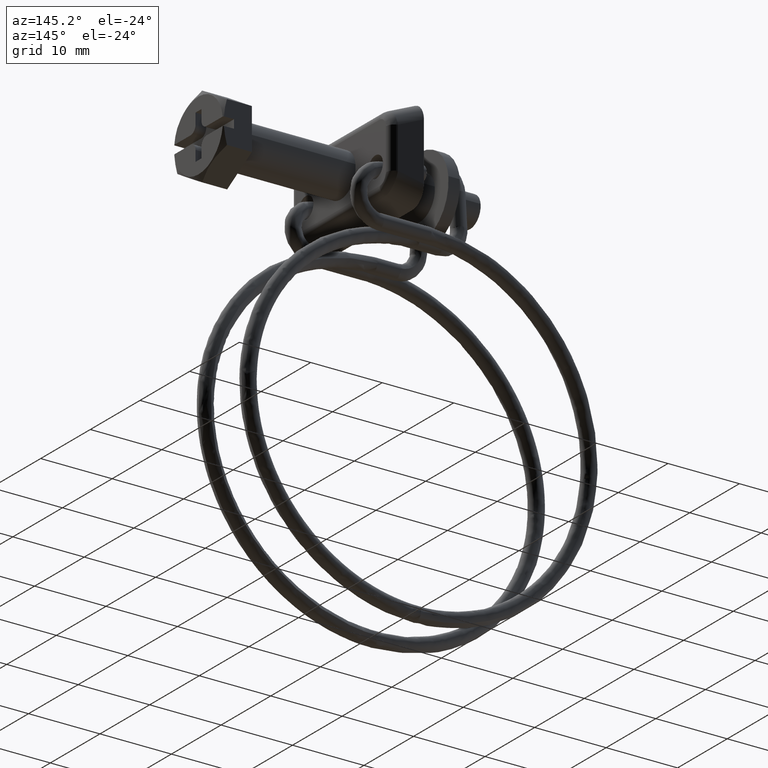
[diagram: clean part render]
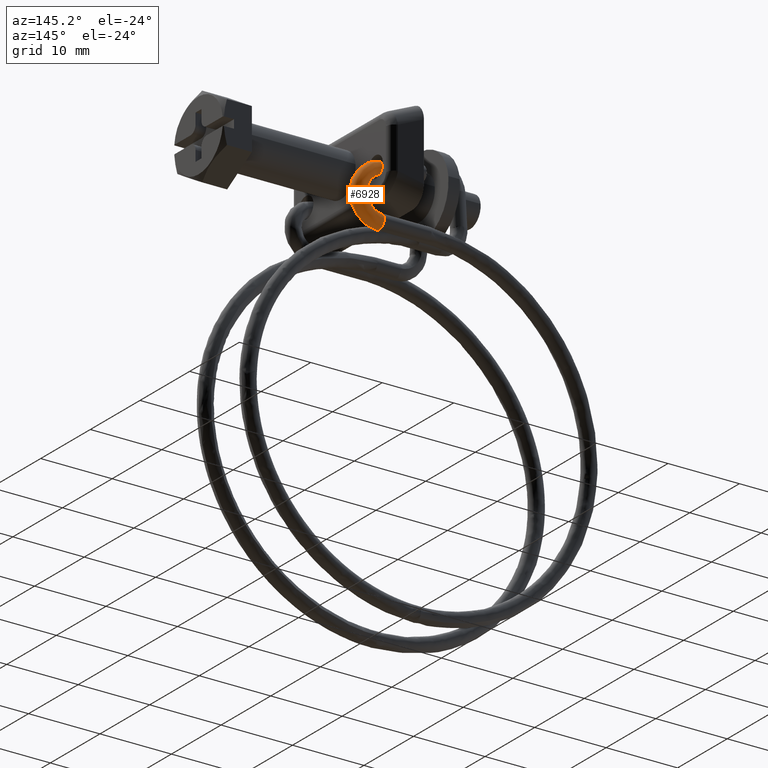
[diagram: same view with one face highlighted and labeled with its STEP entity id]
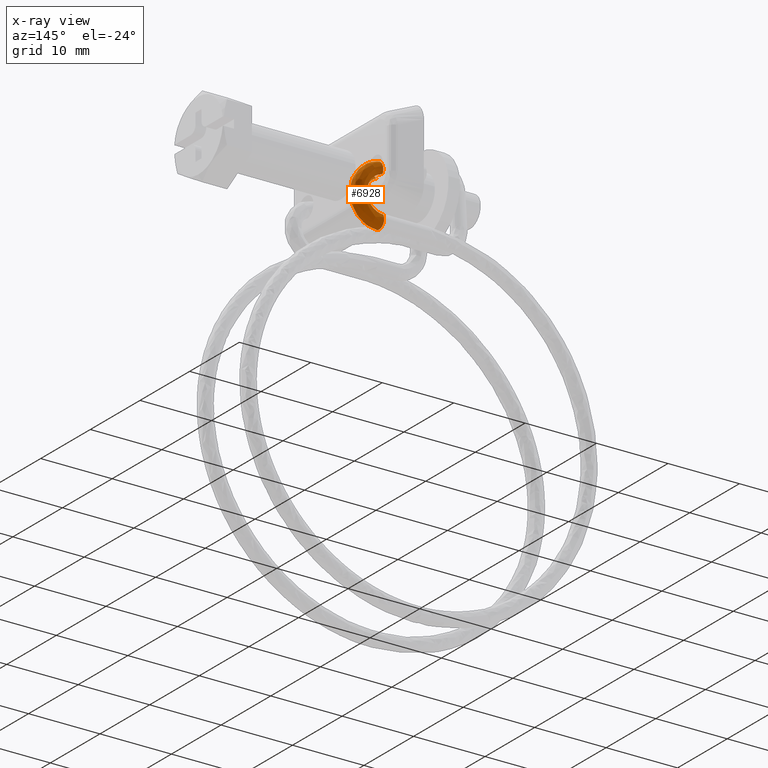
[diagram: x-ray of the same camera — body ghosted, the highlighted face saturated]
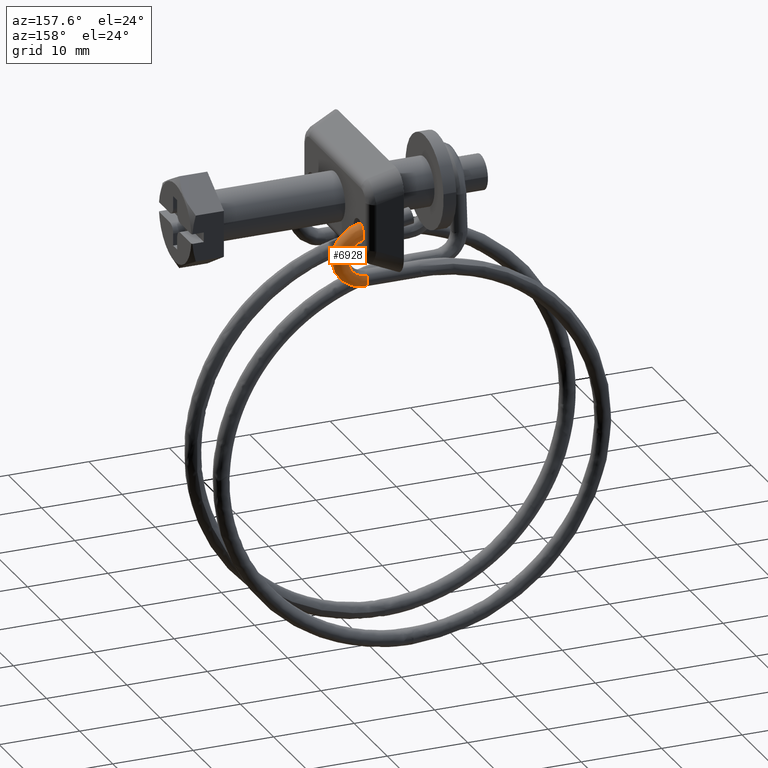
[diagram: same view with one face highlighted and labeled with its STEP entity id]
A machine part, auxiliary view. The second image highlights one B-rep face of the part: STEP entity #6928.
The next image is the same camera in x-ray: the body ghosted, the highlighted face saturated — about 0% of this face is hidden behind the body in this view.
A second angle (auxiliary view) of the same face is appended — the face is thin or edge-on in the first view.
In plain terms, the highlighted face is a freeform B-spline surface patch.
Its self-contained STEP definition (entity closure, byte-faithful):
#4402=CARTESIAN_POINT('',(-16.534495639702449,6.447238915336649,-2.577443751614119));
#4403=VERTEX_POINT('',#4402);
#4404=CARTESIAN_POINT('',(-16.546249009740741,6.790304121652265,-2.676535640018965));
#4405=VERTEX_POINT('',#4404);
#4406=CARTESIAN_POINT('',(-16.534495639702449,6.447238915336649,-2.577443751614119));
#4407=CARTESIAN_POINT('',(-16.542001209574451,6.554502053319235,-2.630151194308590));
#4408=CARTESIAN_POINT('',(-16.546091417353129,6.671092411494970,-2.664370989989630));
#4409=CARTESIAN_POINT('',(-16.546249009740741,6.790304121652265,-2.676535640018965));
#4410=B_SPLINE_CURVE_WITH_KNOTS('',3,(#4406,#4407,#4408,#4409),.UNSPECIFIED.,.F.,.U.,(4,4),(0.942811831372630,1.0),.UNSPECIFIED.);
#4411=EDGE_CURVE('',#4403,#4405,#4410,.T.);
#4467=CARTESIAN_POINT('',(-16.359681639940430,5.905107535575387,-1.534767831245679));
#4468=VERTEX_POINT('',#4467);
#4474=CARTESIAN_POINT('',(-16.197464544278709,6.993155168943109,-0.717658193810197));
#4475=VERTEX_POINT('',#4474);
#4476=CARTESIAN_POINT('',(-16.197464544278709,6.993155168943109,-0.717658193810197));
#4477=CARTESIAN_POINT('',(-16.197063370672129,6.732735961371034,-0.690761629802938));
#4478=CARTESIAN_POINT('',(-16.215459431934640,6.462987360090886,-0.769587488932888));
#4479=CARTESIAN_POINT('',(-16.276969296311549,6.072928406550254,-1.081549235233186));
#4480=CARTESIAN_POINT('',(-16.317713431826700,5.944749418056214,-1.300502120479895));
#4481=CARTESIAN_POINT('',(-16.359681639940430,5.905107535575387,-1.534767831245679));
#4482=B_SPLINE_CURVE_WITH_KNOTS('',3,(#4476,#4477,#4478,#4479,#4480,#4481),.UNSPECIFIED.,.F.,.U.,(4,2,4),(0.500000000000000,0.625000000000000,0.740274457863664),.UNSPECIFIED.);
#4483=EDGE_CURVE('',#4475,#4468,#4482,.T.);
#4485=CARTESIAN_POINT('',(-16.492351474345181,7.547390449640666,-2.442446267555837));
#4486=VERTEX_POINT('',#4485);
#4487=CARTESIAN_POINT('',(-16.492351474345181,7.547390449640666,-2.442446267555837));
#4488=CARTESIAN_POINT('',(-16.460636668970889,7.736808085107459,-2.280491107341004));
#4489=CARTESIAN_POINT('',(-16.417218414779999,7.860946337834699,-2.045990501136393));
#4490=CARTESIAN_POINT('',(-16.327733107179810,7.912990480167111,-1.543414359756794));
#4491=CARTESIAN_POINT('',(-16.282193347836380,7.832177382091035,-1.277504920707368));
#4492=CARTESIAN_POINT('',(-16.217059076132880,7.501448372299125,-0.876841063415807));
#4493=CARTESIAN_POINT('',(-16.197865649721990,7.253569034499658,-0.744553866181911));
#4494=CARTESIAN_POINT('',(-16.197464544278709,6.993155168943106,-0.717658193810196));
#4495=B_SPLINE_CURVE_WITH_KNOTS('',3,(#4487,#4488,#4489,#4490,#4491,#4492,#4493,#4494),.UNSPECIFIED.,.F.,.U.,(4,2,2,4),(0.130000056786330,0.250000000000000,0.375000000000000,0.500000000000000),.UNSPECIFIED.);
#4496=EDGE_CURVE('',#4486,#4475,#4495,.T.);
#4524=CARTESIAN_POINT('',(-16.359681639940430,5.905107535575387,-1.534767831245679));
#4525=CARTESIAN_POINT('',(-16.363223530915882,5.901760990485569,-1.554538503899051));
#4526=CARTESIAN_POINT('',(-16.366774160362201,5.899044588132136,-1.574418311900457));
#4527=CARTESIAN_POINT('',(-16.415997914059659,5.870390264152775,-1.850871109476469));
#4528=CARTESIAN_POINT('',(-16.461556109091390,5.951162135880821,-2.116881204810501));
#4529=CARTESIAN_POINT('',(-16.511817038147971,6.206177195906982,-2.426035706789479));
#4530=CARTESIAN_POINT('',(-16.525557424618210,6.320151077553023,-2.514737039042450));
#4531=CARTESIAN_POINT('',(-16.534495639702449,6.447238915336649,-2.577443751614119));
#4532=B_SPLINE_CURVE_WITH_KNOTS('',3,(#4524,#4525,#4526,#4527,#4528,#4529,#4530,#4531),.UNSPECIFIED.,.F.,.U.,(4,2,2,4),(0.740274457863664,0.750000000000000,0.875000000000000,0.942811831372630),.UNSPECIFIED.);
#4533=EDGE_CURVE('',#4468,#4403,#4532,.T.);
#4581=CARTESIAN_POINT('',(-16.910179502794509,6.039723107810842,-6.887720723932116));
#4582=VERTEX_POINT('',#4581);
#4583=CARTESIAN_POINT('',(-16.910180467311100,6.395377672450136,-6.853652176554011));
#4584=VERTEX_POINT('',#4583);
#4585=CARTESIAN_POINT('',(-16.910179502794509,6.039723107810842,-6.887720723932116));
#4586=CARTESIAN_POINT('',(-16.910180282656199,6.155025781547988,-6.855393420815556));
#4587=CARTESIAN_POINT('',(-16.910180622412060,6.275997271800816,-6.843272989087674));
#4588=CARTESIAN_POINT('',(-16.910180467311100,6.395377672450136,-6.853652176554011));
#4589=B_SPLINE_CURVE_WITH_KNOTS('',3,(#4585,#4586,#4587,#4588),.UNSPECIFIED.,.F.,.U.,(4,4),(0.942811886716022,1.0),.UNSPECIFIED.);
#4590=EDGE_CURVE('',#4582,#4584,#4589,.T.);
#4592=CARTESIAN_POINT('',(-16.910175397890441,7.094731330780588,-7.230198252525518));
#4593=VERTEX_POINT('',#4592);
#4603=CARTESIAN_POINT('',(-16.910136618372260,6.224626138458891,-8.846349823232007));
#4604=VERTEX_POINT('',#4603);
#4605=CARTESIAN_POINT('',(-16.910175397890441,7.094731330780588,-7.230198252525518));
#4606=CARTESIAN_POINT('',(-16.910170342128890,7.250177424599551,-7.427557812160665));
#4607=CARTESIAN_POINT('',(-16.910163901116981,7.327807994566904,-7.684967054644090));
#4608=CARTESIAN_POINT('',(-16.910151350500200,7.283999405544144,-8.196220278816846));
#4609=CARTESIAN_POINT('',(-16.910145344748329,7.154406119922831,-8.446256349330835));
#4610=CARTESIAN_POINT('',(-16.910137519533929,6.753908142639391,-8.783535236781297));
#4611=CARTESIAN_POINT('',(-16.910135748257769,6.485469650524165,-8.868701146750475));
#4612=CARTESIAN_POINT('',(-16.910136618372260,6.224626138458891,-8.846349823232007));
#4613=B_SPLINE_CURVE_WITH_KNOTS('',3,(#4605,#4606,#4607,#4608,#4609,#4610,#4611,#4612),.UNSPECIFIED.,.F.,.U.,(4,2,2,4),(0.130000028426674,0.250000000000001,0.375000000000001,0.500000000000001),.UNSPECIFIED.);
#4614=EDGE_CURVE('',#4593,#4604,#4613,.T.);
#4616=CARTESIAN_POINT('',(-16.910158460001441,5.310338332396111,-7.825610531950982));
#4617=VERTEX_POINT('',#4616);
#4618=CARTESIAN_POINT('',(-16.910136618372260,6.224626138458891,-8.846349823232007));
#4619=CARTESIAN_POINT('',(-16.910136947703531,5.963777211420186,-8.823998380324968));
#4620=CARTESIAN_POINT('',(-16.910139637873641,5.713733662061064,-8.694404929855677));
#4621=CARTESIAN_POINT('',(-16.910147887037539,5.389561295664832,-8.309486788795161));
#4622=CARTESIAN_POINT('',(-16.910153161592230,5.305025626932331,-8.066826335596931));
#4623=CARTESIAN_POINT('',(-16.910158460001441,5.310338332396111,-7.825610531950982));
#4624=B_SPLINE_CURVE_WITH_KNOTS('',3,(#4618,#4619,#4620,#4621,#4622,#4623),.UNSPECIFIED.,.F.,.U.,(4,2,4),(0.500000000000001,0.625000000000001,0.740274513286881),.UNSPECIFIED.);
#4625=EDGE_CURVE('',#4604,#4617,#4624,.T.);
#4700=CARTESIAN_POINT('',(-16.910158460001441,5.310338332396111,-7.825610531950982));
#4701=CARTESIAN_POINT('',(-16.910158907203169,5.310785709897503,-7.805253248682037));
#4702=CARTESIAN_POINT('',(-16.910159354579051,5.311872583176767,-7.784906097804774));
#4703=CARTESIAN_POINT('',(-16.910165543651800,5.335944569551755,-7.503675460506837));
#4704=CARTESIAN_POINT('',(-16.910171115681081,5.465516376279725,-7.253531178026821));
#4705=CARTESIAN_POINT('',(-16.910177021410458,5.774368821809805,-6.993251312553566));
#4706=CARTESIAN_POINT('',(-16.910178571509171,5.903060922576882,-6.926280055020107));
#4707=CARTESIAN_POINT('',(-16.910179502794509,6.039723107810842,-6.887720723932116));
#4708=B_SPLINE_CURVE_WITH_KNOTS('',3,(#4700,#4701,#4702,#4703,#4704,#4705,#4706,#4707),.UNSPECIFIED.,.F.,.U.,(4,2,2,4),(0.740274513286881,0.750000000000000,0.875000000000000,0.942811886716021),.UNSPECIFIED.);
#4709=EDGE_CURVE('',#4617,#4582,#4708,.T.);
#6771=CARTESIAN_POINT('',(-16.530770089409810,7.527367649257713,-2.453896296511009));
#6772=CARTESIAN_POINT('',(-16.501454727194311,7.728294304432589,-2.290827019424198));
#6773=CARTESIAN_POINT('',(-16.460275967009199,7.860713918415632,-2.047601933635730));
#6774=CARTESIAN_POINT('',(-16.376926284011880,7.914013959229299,-1.534989823068466));
#6775=CARTESIAN_POINT('',(-16.293305654796509,7.751453953369736,-1.000286442261049));
#6776=CARTESIAN_POINT('',(-16.240312602271050,7.005107520841667,-0.600604407351707));
#6777=CARTESIAN_POINT('',(-16.274112891744949,6.463659049949198,-0.759333042189384));
#6778=CARTESIAN_POINT('',(-16.332639495901610,6.058088098740996,-1.084473448125964));
#6779=CARTESIAN_POINT('',(-16.415722462382160,5.790422120063382,-1.575161806776680));
#6780=CARTESIAN_POINT('',(-16.542799975053310,6.036118943639843,-2.387618625686907));
#6781=CARTESIAN_POINT('',(-16.577820093019358,6.548048734361149,-2.653515029634625));
#6782=CARTESIAN_POINT('',(-16.576997175188922,6.818003629210506,-2.673927165346079));
#6783=CARTESIAN_POINT('',(-15.934595305975639,7.518295775406224,-2.549849028062045));
#6784=CARTESIAN_POINT('',(-15.859188699766040,7.718520900277722,-2.394199800249660));
#6785=CARTESIAN_POINT('',(-15.753266476104400,7.849955051934418,-2.161397897913537));
#6786=CARTESIAN_POINT('',(-15.538870088791580,7.901260351694790,-1.669884059161838));
#6787=CARTESIAN_POINT('',(-15.323776917634859,7.736699045945162,-1.156348322731633));
#6788=CARTESIAN_POINT('',(-15.187465641193540,6.989084275242509,-0.770081434491218));
#6789=CARTESIAN_POINT('',(-15.274408374823430,6.448444779843441,-0.920253577768180));
#6790=CARTESIAN_POINT('',(-15.424953388925131,6.044274574003778,-1.230578373092566));
#6791=CARTESIAN_POINT('',(-15.638663560981801,5.778597025440293,-1.700235210310009));
#6792=CARTESIAN_POINT('',(-15.965539181080331,6.027334981798686,-2.480526126955702));
#6793=CARTESIAN_POINT('',(-16.055619980550059,6.540102771732715,-2.737559057169745));
#6794=CARTESIAN_POINT('',(-16.053503216899038,6.810037977831258,-2.758179439762989));
#6795=CARTESIAN_POINT('',(-15.381990810777120,7.487024843071811,-2.880600061301379));
#6796=CARTESIAN_POINT('',(-15.264111411025890,7.684835812539431,-2.750485230058247));
#6797=CARTESIAN_POINT('',(-15.098528360981341,7.812878877512561,-2.553550675762649));
#6798=CARTESIAN_POINT('',(-14.763372727661960,7.857320368418541,-2.134634987325897));
#6799=CARTESIAN_POINT('',(-14.427127630208780,7.685873012784577,-1.693932643339480));
#6800=CARTESIAN_POINT('',(-14.214038438485590,6.933894381817352,-1.353822078714466));
#6801=CARTESIAN_POINT('',(-14.349952036035880,6.396038267346820,-1.474554546307791));
#6802=CARTESIAN_POINT('',(-14.585292084046140,5.996687629121698,-1.733903024996657));
#6803=CARTESIAN_POINT('',(-14.919375198339090,5.737851856382588,-2.131194754202863));
#6804=CARTESIAN_POINT('',(-15.430363923001060,5.997054695165912,-2.800799151984887));
#6805=CARTESIAN_POINT('',(-15.571182619516920,6.512706480468434,-3.027328212633018));
#6806=CARTESIAN_POINT('',(-15.567873599825051,6.782573914410718,-3.048665417813020));
#6807=CARTESIAN_POINT('',(-14.654952296929240,7.397359566292807,-3.828985035602646));
#6808=CARTESIAN_POINT('',(-14.481494820952490,7.588316120893628,-3.771368994318768));
#6809=CARTESIAN_POINT('',(-14.237842257520040,7.706730913900493,-3.676272172411008));
#6810=CARTESIAN_POINT('',(-13.744666602248291,7.731683878730182,-3.463485611830774));
#6811=CARTESIAN_POINT('',(-13.249887819553310,7.540684647197840,-3.229582443494344));
#6812=CARTESIAN_POINT('',(-12.936330799140620,6.776315371834579,-3.020527080925526));
#6813=CARTESIAN_POINT('',(-13.136325281910530,6.246362319186590,-3.057669274206325));
#6814=CARTESIAN_POINT('',(-13.482624048363160,5.860696161263331,-3.172277715657505));
#6815=CARTESIAN_POINT('',(-13.974221510625121,5.621286550095342,-3.364099943135131));
#6816=CARTESIAN_POINT('',(-14.726132485922721,5.910202203151044,-3.719433447962911));
#6817=CARTESIAN_POINT('',(-14.933344736059031,6.434042270451526,-3.859355475301056));
#6818=CARTESIAN_POINT('',(-14.928475571428930,6.703717292540666,-3.882727810658132));
#6819=CARTESIAN_POINT('',(-14.478216599969530,7.339955022484021,-4.436149913246811));
#6820=CARTESIAN_POINT('',(-14.291384659866379,7.526551038277234,-4.424655064394265));
#6821=CARTESIAN_POINT('',(-14.028945229795580,7.638840661686648,-4.394343843114379));
#6822=CARTESIAN_POINT('',(-13.497743193290731,7.651395708401008,-4.312689418357791));
#6823=CARTESIAN_POINT('',(-12.964814419986730,7.447958257812817,-4.210344646792958));
#6824=CARTESIAN_POINT('',(-12.627080539528039,6.675706488207099,-4.084662016334746));
#6825=CARTESIAN_POINT('',(-12.842495626220790,6.150781086852068,-4.068627003080086));
#6826=CARTESIAN_POINT('',(-13.215495809852881,5.773820516286959,-4.091156899305508));
#6827=CARTESIAN_POINT('',(-13.744997966547340,5.546769149118926,-4.152266622012096));
#6828=CARTESIAN_POINT('',(-14.554885147871980,5.854587054551343,-4.307671985447711));
#6829=CARTESIAN_POINT('',(-14.778074528947281,6.383636220237415,-4.392497649775971));
#6830=CARTESIAN_POINT('',(-14.772829926664730,6.653188836640455,-4.417164663714491));
#6831=CARTESIAN_POINT('',(-14.581909472645810,7.228416252917865,-5.615889684422069));
#6832=CARTESIAN_POINT('',(-14.402954901610260,7.406538860371781,-5.694017635373252));
#6833=CARTESIAN_POINT('',(-14.151580668671640,7.506926041114340,-5.789597931833423));
#6834=CARTESIAN_POINT('',(-13.642775629643090,7.495389426823392,-5.962759753952405));
#6835=CARTESIAN_POINT('',(-13.132316657976840,7.267782002356594,-6.116059540452150));
#6836=CARTESIAN_POINT('',(-12.808822604071430,6.480212953073464,-6.152386981390117));
#6837=CARTESIAN_POINT('',(-13.015155174473870,5.965057294465975,-6.033017906629481));
#6838=CARTESIAN_POINT('',(-13.372428603317790,5.605013439880562,-5.876620576784342));
#6839=CARTESIAN_POINT('',(-13.879605434336380,5.401976638893876,-5.683729480575821));
#6840=CARTESIAN_POINT('',(-14.655345455239861,5.746525441581701,-5.450634051929812));
#6841=CARTESIAN_POINT('',(-14.869124533533361,6.285696938395683,-5.428396345793241));
#6842=CARTESIAN_POINT('',(-14.864101058686581,6.555011695808107,-5.455579181918961));
#6843=CARTESIAN_POINT('',(-14.861718039616269,7.174858266221587,-6.182369727309960));
#6844=CARTESIAN_POINT('',(-14.703999822240180,7.348900664137925,-6.303653842570173));
#6845=CARTESIAN_POINT('',(-14.482455909259791,7.443556448713073,-6.459854818549997));
#6846=CARTESIAN_POINT('',(-14.034030237414781,7.420418950684178,-6.755718585287872));
#6847=CARTESIAN_POINT('',(-13.584146903398500,7.181172932396136,-7.032119173990277));
#6848=CARTESIAN_POINT('',(-13.299041553935290,6.386228136764183,-7.146459500899971));
#6849=CARTESIAN_POINT('',(-13.480888851838600,5.875776913013479,-6.977331863064004));
#6850=CARTESIAN_POINT('',(-13.795765012793090,5.523878983080193,-6.734775511355458));
#6851=CARTESIAN_POINT('',(-14.242755694386849,5.332405942275812,-6.419575124443582));
#6852=CARTESIAN_POINT('',(-14.926439450188489,5.694641813886468,-5.999404486663934));
#6853=CARTESIAN_POINT('',(-15.114849586604720,6.238687527821801,-5.925612439247469));
#6854=CARTESIAN_POINT('',(-15.110422242313550,6.507887748735595,-5.954006721970528));
#6855=CARTESIAN_POINT('',(-15.741805382882941,7.098635240820739,-6.988576707139992));
#6856=CARTESIAN_POINT('',(-15.651567284663169,7.266833288308548,-7.171676213262573));
#6857=CARTESIAN_POINT('',(-15.524811468421630,7.353279620072731,-7.414708145124627));
#6858=CARTESIAN_POINT('',(-15.268245800262930,7.313525419096122,-7.886325915685458));
#6859=CARTESIAN_POINT('',(-15.010846134216330,7.057608683248255,-8.339051817977081));
#6860=CARTESIAN_POINT('',(-14.847723795174501,6.252099124716598,-8.565135093200375));
#6861=CARTESIAN_POINT('',(-14.951767288703000,5.748386370060175,-8.324735017824686));
#6862=CARTESIAN_POINT('',(-15.131922925839600,5.408156379676787,-7.958767475659711));
#6863=CARTESIAN_POINT('',(-15.387667567778710,5.233246867329466,-7.468375508745298));
#6864=CARTESIAN_POINT('',(-15.778835582068909,5.620817082162171,-6.780244838851597));
#6865=CARTESIAN_POINT('',(-15.886633987841270,6.171844455412798,-6.632608143564111));
#6866=CARTESIAN_POINT('',(-15.884100893473031,6.440880618223829,-6.662737660313501));
#6867=CARTESIAN_POINT('',(-16.341314956916069,7.076964771017392,-7.217784140445604));
#6868=CARTESIAN_POINT('',(-16.297320859858122,7.243483427367593,-7.418646479379507));
#6869=CARTESIAN_POINT('',(-16.235523151436329,7.327570748929935,-7.686629539607151));
#6870=CARTESIAN_POINT('',(-16.110438789857419,7.283041689911020,-8.208750735636180));
#6871=CARTESIAN_POINT('',(-15.984947826347661,7.022334574764129,-8.712144230920330));
#6872=CARTESIAN_POINT('',(-15.905420219298421,6.213789200805648,-8.970337168156981));
#6873=CARTESIAN_POINT('',(-15.956144909235130,5.712012764894792,-8.709456750041923));
#6874=CARTESIAN_POINT('',(-16.043976819946991,5.375135590961441,-8.308026642453068));
#6875=CARTESIAN_POINT('',(-16.168660903731400,5.204985656813255,-7.767292864190378));
#6876=CARTESIAN_POINT('',(-16.359368420020228,5.599835769039685,-7.002163097736837));
#6877=CARTESIAN_POINT('',(-16.411923755519680,6.152869342453132,-6.833306927568369));
#6878=CARTESIAN_POINT('',(-16.410688787118680,6.421858362689283,-6.863935068871118));
#6879=CARTESIAN_POINT('',(-16.945721320761539,7.077820958792547,-7.208728286822580));
#6880=CARTESIAN_POINT('',(-16.948470839536789,7.244405954747803,-7.408888955206420));
#6881=CARTESIAN_POINT('',(-16.952333038580232,7.328586462346524,-7.675886391560121));
#6882=CARTESIAN_POINT('',(-16.960150491912700,7.284246020609592,-8.196012592384475));
#6883=CARTESIAN_POINT('',(-16.967993356827940,7.023728135867708,-8.697404607484357));
#6884=CARTESIAN_POINT('',(-16.972963629281711,6.215302683228173,-8.954329143221020));
#6885=CARTESIAN_POINT('',(-16.969793465630680,5.713449758510514,-8.694257743199785));
#6886=CARTESIAN_POINT('',(-16.964304195394071,5.376440141032957,-8.294228484110169));
#6887=CARTESIAN_POINT('',(-16.956511758402080,5.206102193187902,-7.755483316953070));
#6888=CARTESIAN_POINT('',(-16.944593025397339,5.600664733627631,-6.993395182370596));
#6889=CARTESIAN_POINT('',(-16.941308451071251,6.153619057767687,-6.825377227629414));
#6890=CARTESIAN_POINT('',(-16.941385633444160,6.422609940238965,-6.855985672182650));
#6891=B_SPLINE_SURFACE_WITH_KNOTS('',3,3,((#6771,#6783,#6795,#6807,#6819,#6831,#6843,#6855,#6867,#6879),(#6772,#6784,#6796,#6808,#6820,#6832,#6844,#6856,#6868,#6880),(#6773,#6785,#6797,#6809,#6821,#6833,#6845,#6857,#6869,#6881),(#6774,#6786,#6798,#6810,#6822,#6834,#6846,#6858,#6870,#6882),(#6775,#6787,#6799,#6811,#6823,#6835,#6847,#6859,#6871,#6883),(#6776,#6788,#6800,#6812,#6824,#6836,#6848,#6860,#6872,#6884),(#6777,#6789,#6801,#6813,#6825,#6837,#6849,#6861,#6873,#6885),(#6778,#6790,#6802,#6814,#6826,#6838,#6850,#6862,#6874,#6886),(#6779,#6791,#6803,#6815,#6827,#6839,#6851,#6863,#6875,#6887),(#6780,#6792,#6804,#6816,#6828,#6840,#6852,#6864,#6876,#6888),(#6781,#6793,#6805,#6817,#6829,#6841,#6853,#6865,#6877,#6889),(#6782,#6794,#6806,#6818,#6830,#6842,#6854,#6866,#6878,#6890)),.UNSPECIFIED.,.F.,.F.,.U.,(4,2,1,1,2,1,1,4),(4,2,2,2,4),(0.0,0.781796440780032,1.567670543815322,2.353544646850611,3.139418749885901,3.925292852921190,4.711166955956480,5.524389683781932),(0.0,3.120285362494222,6.179388519936057,9.238491677377896,12.358805693795560),.UNSPECIFIED.);
#6892=ORIENTED_EDGE('',*,*,#4496,.T.);
#6893=ORIENTED_EDGE('',*,*,#4483,.T.);
#6894=ORIENTED_EDGE('',*,*,#4533,.T.);
#6895=ORIENTED_EDGE('',*,*,#4411,.T.);
#6896=CARTESIAN_POINT('',(-16.546249009740741,6.790304121652265,-2.676535640018965));
#6897=CARTESIAN_POINT('',(-16.034419943789882,6.781768238578406,-2.766819226029522));
#6898=CARTESIAN_POINT('',(-15.561389054934651,6.754601628277204,-3.054159057662688));
#6899=CARTESIAN_POINT('',(-14.928252406163359,6.676516899636509,-3.880057175942790));
#6900=CARTESIAN_POINT('',(-14.772591079114751,6.625982740648835,-4.414554350273593));
#6901=CARTESIAN_POINT('',(-14.863876147895080,6.527794517703035,-5.453086083445616));
#6902=CARTESIAN_POINT('',(-15.110226910987761,6.480665234175851,-5.951570066915431));
#6903=CARTESIAN_POINT('',(-15.876331858514220,6.414314290703603,-6.653360549052551));
#6904=CARTESIAN_POINT('',(-16.390035481977229,6.395377672588048,-6.853652175086137));
#6905=CARTESIAN_POINT('',(-16.910180467311100,6.395377672450136,-6.853652176554011));
#6906=B_SPLINE_CURVE_WITH_KNOTS('',3,(#6896,#6897,#6898,#6899,#6900,#6901,#6902,#6903,#6904,#6905),.UNSPECIFIED.,.F.,.U.,(4,2,2,2,4),(0.398477965002052,0.548858473751539,0.699238982501026,0.849619491250513,1.0),.UNSPECIFIED.);
#6907=EDGE_CURVE('',#4405,#4584,#6906,.T.);
#6908=ORIENTED_EDGE('',*,*,#6907,.T.);
#6909=ORIENTED_EDGE('',*,*,#4590,.F.);
#6910=ORIENTED_EDGE('',*,*,#4709,.F.);
#6911=ORIENTED_EDGE('',*,*,#4625,.F.);
#6912=ORIENTED_EDGE('',*,*,#4614,.F.);
#6913=CARTESIAN_POINT('',(-16.492351474345181,7.547390449640666,-2.442446267555837));
#6914=CARTESIAN_POINT('',(-15.904690615842741,7.537589586337818,-2.546109483269605));
#6915=CARTESIAN_POINT('',(-15.362031763581420,7.506404866943517,-2.875948646546659));
#6916=CARTESIAN_POINT('',(-14.636263924942920,7.416896093751778,-3.822678290690931));
#6917=CARTESIAN_POINT('',(-14.458088257422521,7.359021680582578,-4.434812952254061));
#6918=CARTESIAN_POINT('',(-14.562632326974860,7.246569859835031,-5.624210018550439));
#6919=CARTESIAN_POINT('',(-14.844730381269070,7.192572210434647,-6.195340351122937));
#6920=CARTESIAN_POINT('',(-15.723300917246810,7.116480710809906,-7.000156189805511));
#6921=CARTESIAN_POINT('',(-16.312927363672610,7.094731331197471,-7.230198248111436));
#6922=CARTESIAN_POINT('',(-16.910175397890441,7.094731330780588,-7.230198252525518));
#6923=B_SPLINE_CURVE_WITH_KNOTS('',3,(#6913,#6914,#6915,#6916,#6917,#6918,#6919,#6920,#6921,#6922),.UNSPECIFIED.,.F.,.U.,(4,2,2,2,4),(0.398477965002052,0.548858473751539,0.699238982501026,0.849619491250513,1.0),.UNSPECIFIED.);
#6924=EDGE_CURVE('',#4486,#4593,#6923,.T.);
#6925=ORIENTED_EDGE('',*,*,#6924,.F.);
#6926=EDGE_LOOP('',(#6892,#6893,#6894,#6895,#6908,#6909,#6910,#6911,#6912,#6925));
#6927=FACE_OUTER_BOUND('',#6926,.T.);
#6928=ADVANCED_FACE('',(#6927),#6891,.T.);